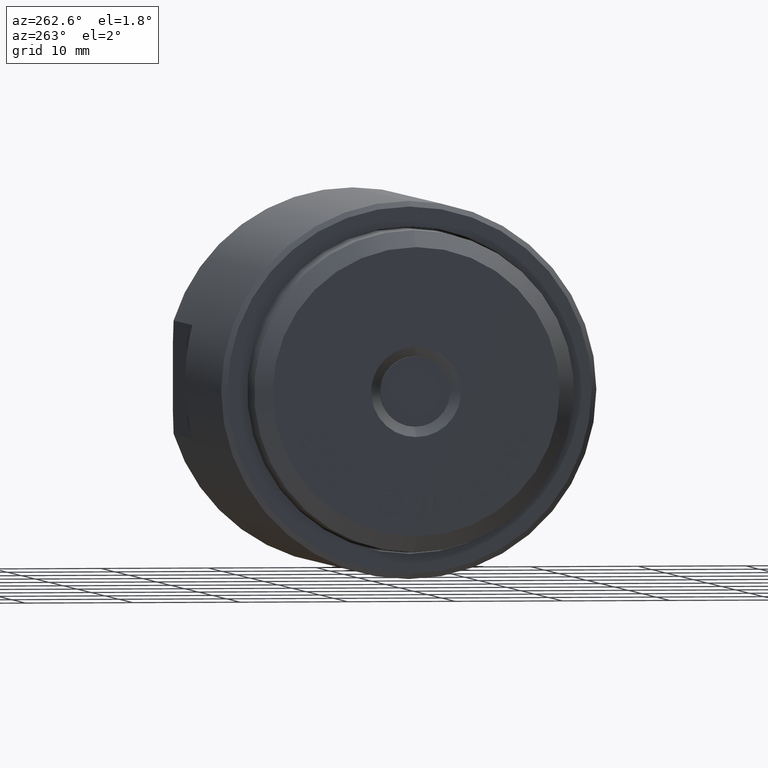
[diagram: clean part render]
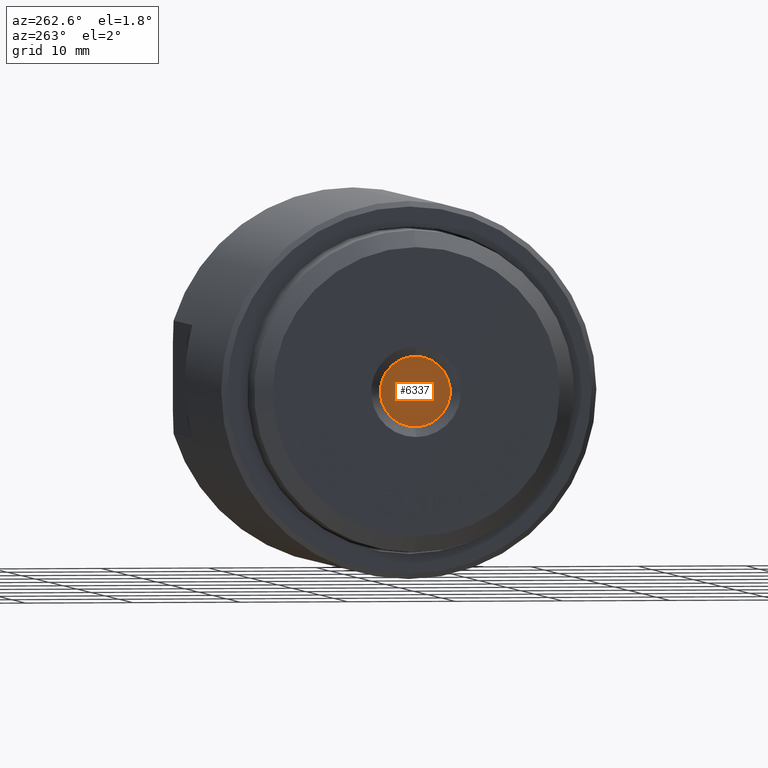
[diagram: same view with one face highlighted and labeled with its STEP entity id]
A machine part, auxiliary view. The second image highlights one B-rep face of the part: STEP entity #6337.
In plain terms, the highlighted planar face has unit normal (1, 0, 0).
Its self-contained STEP definition (entity closure, byte-faithful):
#756 = CARTESIAN_POINT ( 'NONE',  ( -0.4437500000000001443, 0.0000000000000000000, 0.0000000000000000000 ) ) ;
#841 = AXIS2_PLACEMENT_3D ( 'NONE', #756, #12145, #6596 ) ;
#1045 = AXIS2_PLACEMENT_3D ( 'NONE', #1455, #7123, #4245 ) ;
#1455 = CARTESIAN_POINT ( 'NONE',  ( -0.4437500000000001443, 0.0000000000000000000, 0.0000000000000000000 ) ) ;
#1518 = DIRECTION ( 'NONE',  ( 1.000000000000000000, 0.0000000000000000000, 0.0000000000000000000 ) ) ;
#1572 = VERTEX_POINT ( 'NONE', #4316 ) ;
#1901 = EDGE_LOOP ( 'NONE', ( #7395, #8046 ) ) ;
#3560 = FACE_OUTER_BOUND ( 'NONE', #1901, .T. ) ;
#3806 = CIRCLE ( 'NONE', #841, 0.1280824640740578224 ) ;
#4245 = DIRECTION ( 'NONE',  ( 0.0000000000000000000, 0.0000000000000000000, 1.000000000000000000 ) ) ;
#4316 = CARTESIAN_POINT ( 'NONE',  ( -0.4437500000000001443, 0.0000000000000000000, 0.1280824640740578224 ) ) ;
#5367 = DIRECTION ( 'NONE',  ( 0.0000000000000000000, 0.0000000000000000000, -1.000000000000000000 ) ) ;
#6337 = ADVANCED_FACE ( 'NONE', ( #3560 ), #9109, .F. ) ;
#6596 = DIRECTION ( 'NONE',  ( 0.0000000000000000000, 0.0000000000000000000, 1.000000000000000000 ) ) ;
#7123 = DIRECTION ( 'NONE',  ( -1.000000000000000000, -0.0000000000000000000, -0.0000000000000000000 ) ) ;
#7335 = EDGE_CURVE ( 'NONE', #1572, #10435, #9388, .T. ) ;
#7368 = CARTESIAN_POINT ( 'NONE',  ( -0.4437500000000001443, 0.1280824640740578224, 0.0000000000000000000 ) ) ;
#7395 = ORIENTED_EDGE ( 'NONE', *, *, #7335, .T. ) ;
#7617 = EDGE_CURVE ( 'NONE', #10435, #1572, #3806, .T. ) ;
#7786 = AXIS2_PLACEMENT_3D ( 'NONE', #7368, #1518, #5367 ) ;
#8046 = ORIENTED_EDGE ( 'NONE', *, *, #7617, .T. ) ;
#9109 = PLANE ( 'NONE',  #7786 ) ;
#9388 = CIRCLE ( 'NONE', #1045, 0.1280824640740578224 ) ;
#9779 = CARTESIAN_POINT ( 'NONE',  ( -0.4437500000000001443, 1.568557796552007688E-17, -0.1280824640740578224 ) ) ;
#10435 = VERTEX_POINT ( 'NONE', #9779 ) ;
#12145 = DIRECTION ( 'NONE',  ( -1.000000000000000000, -0.0000000000000000000, -0.0000000000000000000 ) ) ;